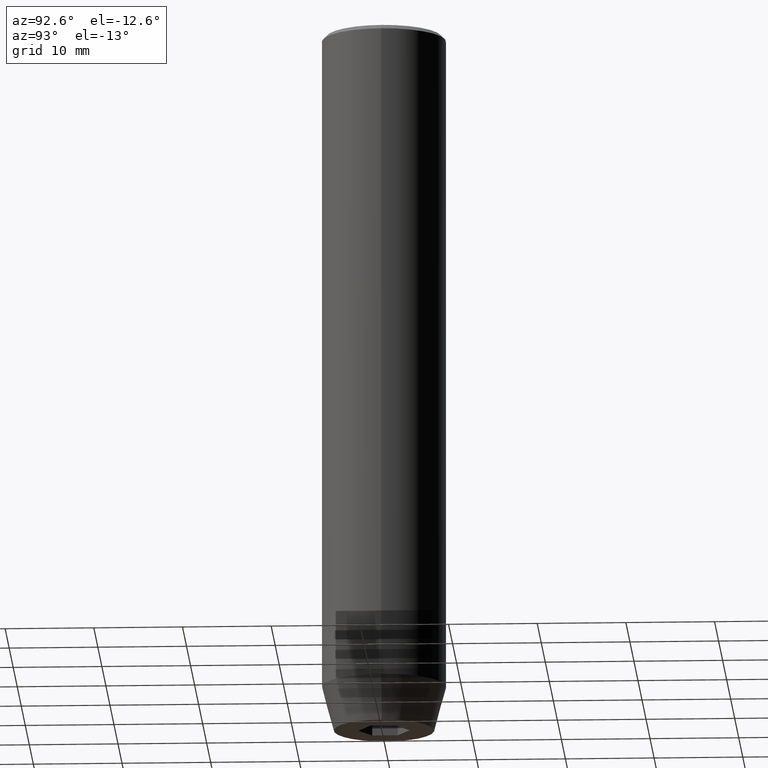
[diagram: clean part render]
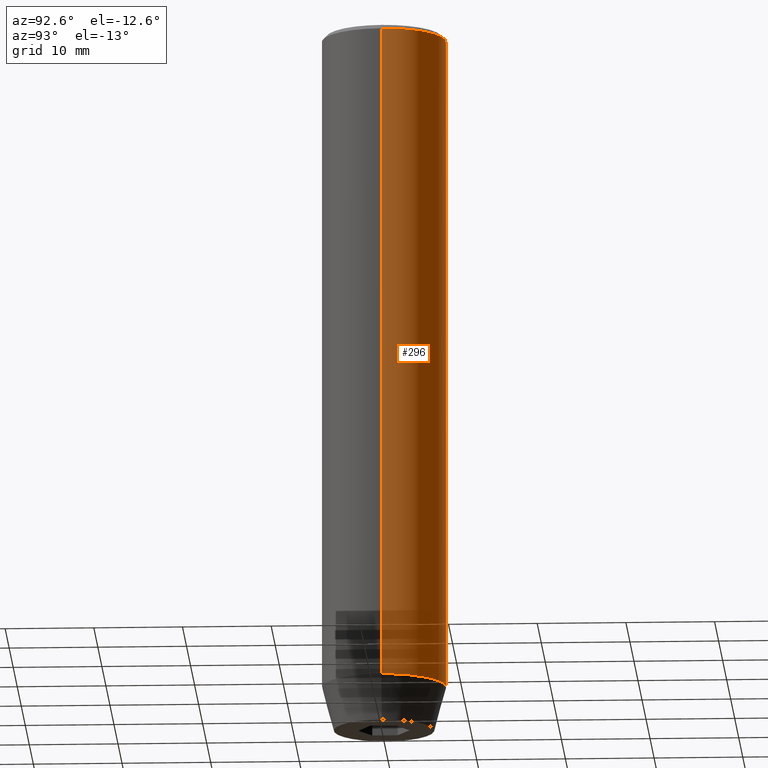
[diagram: same view with one face highlighted and labeled with its STEP entity id]
A machine part, auxiliary view. The second image highlights one B-rep face of the part: STEP entity #296.
In plain terms, the highlighted cylindrical surface (partial cylindrical patch) has radius 7 mm, axis along (-0, -0, 1).
Its self-contained STEP definition (entity closure, byte-faithful):
#24 = CIRCLE ( 'NONE', #493, 7.000000000000000000 ) ;
#30 = DIRECTION ( 'NONE',  ( 0.000000000000000000, 0.000000000000000000, -1.000000000000000000 ) ) ;
#41 = CARTESIAN_POINT ( 'NONE',  ( -7.000000000000000000, 8.572527594031473190E-16, -75.00000000000001421 ) ) ;
#48 = CARTESIAN_POINT ( 'NONE',  ( 7.000000000000000000, 0.000000000000000000, -75.00000000000001421 ) ) ;
#49 = CARTESIAN_POINT ( 'NONE',  ( 0.000000000000000000, 0.000000000000000000, 0.000000000000000000 ) ) ;
#91 = DIRECTION ( 'NONE',  ( -0.000000000000000000, -0.000000000000000000, 1.000000000000000000 ) ) ;
#94 = CARTESIAN_POINT ( 'NONE',  ( 7.000000000000000000, 0.000000000000000000, 0.000000000000000000 ) ) ;
#97 = EDGE_CURVE ( 'NONE', #412, #461, #24, .T. ) ;
#112 = DIRECTION ( 'NONE',  ( -0.000000000000000000, -0.000000000000000000, 1.000000000000000000 ) ) ;
#121 = CARTESIAN_POINT ( 'NONE',  ( 0.000000000000000000, 0.000000000000000000, -0.5000000000000117684 ) ) ;
#129 = CYLINDRICAL_SURFACE ( 'NONE', #247, 7.000000000000000000 ) ;
#142 = DIRECTION ( 'NONE',  ( 1.000000000000000000, 0.000000000000000000, 0.000000000000000000 ) ) ;
#173 = EDGE_CURVE ( 'NONE', #555, #461, #216, .T. ) ;
#176 = LINE ( 'NONE', #502, #281 ) ;
#179 = ORIENTED_EDGE ( 'NONE', *, *, #413, .T. ) ;
#183 = DIRECTION ( 'NONE',  ( -0.000000000000000000, -0.000000000000000000, 1.000000000000000000 ) ) ;
#216 = LINE ( 'NONE', #94, #543 ) ;
#247 = AXIS2_PLACEMENT_3D ( 'NONE', #49, #91, #142 ) ;
#253 = EDGE_CURVE ( 'NONE', #316, #412, #176, .T. ) ;
#272 = EDGE_LOOP ( 'NONE', ( #179, #335, #410, #503 ) ) ;
#274 = CARTESIAN_POINT ( 'NONE',  ( 7.000000000000000000, 0.000000000000000000, -0.5000000000000117684 ) ) ;
#281 = VECTOR ( 'NONE', #354, 1000.000000000000000 ) ;
#296 = ADVANCED_FACE ( 'NONE', ( #497 ), #129, .T. ) ;
#316 = VERTEX_POINT ( 'NONE', #41 ) ;
#322 = AXIS2_PLACEMENT_3D ( 'NONE', #377, #112, #519 ) ;
#335 = ORIENTED_EDGE ( 'NONE', *, *, #253, .T. ) ;
#347 = DIRECTION ( 'NONE',  ( 1.000000000000000000, 0.000000000000000000, 0.000000000000000000 ) ) ;
#354 = DIRECTION ( 'NONE',  ( -0.000000000000000000, -0.000000000000000000, 1.000000000000000000 ) ) ;
#377 = CARTESIAN_POINT ( 'NONE',  ( 0.000000000000000000, 0.000000000000000000, -75.00000000000001421 ) ) ;
#410 = ORIENTED_EDGE ( 'NONE', *, *, #97, .T. ) ;
#412 = VERTEX_POINT ( 'NONE', #565 ) ;
#413 = EDGE_CURVE ( 'NONE', #555, #316, #496, .T. ) ;
#461 = VERTEX_POINT ( 'NONE', #274 ) ;
#493 = AXIS2_PLACEMENT_3D ( 'NONE', #121, #30, #347 ) ;
#496 = CIRCLE ( 'NONE', #322, 7.000000000000000000 ) ;
#497 = FACE_OUTER_BOUND ( 'NONE', #272, .T. ) ;
#502 = CARTESIAN_POINT ( 'NONE',  ( -7.000000000000000000, 8.572527594031473190E-16, 0.000000000000000000 ) ) ;
#503 = ORIENTED_EDGE ( 'NONE', *, *, #173, .F. ) ;
#519 = DIRECTION ( 'NONE',  ( 1.000000000000000000, 0.000000000000000000, 0.000000000000000000 ) ) ;
#543 = VECTOR ( 'NONE', #183, 1000.000000000000000 ) ;
#555 = VERTEX_POINT ( 'NONE', #48 ) ;
#565 = CARTESIAN_POINT ( 'NONE',  ( -7.000000000000000000, 8.572527594031473190E-16, -0.5000000000000117684 ) ) ;